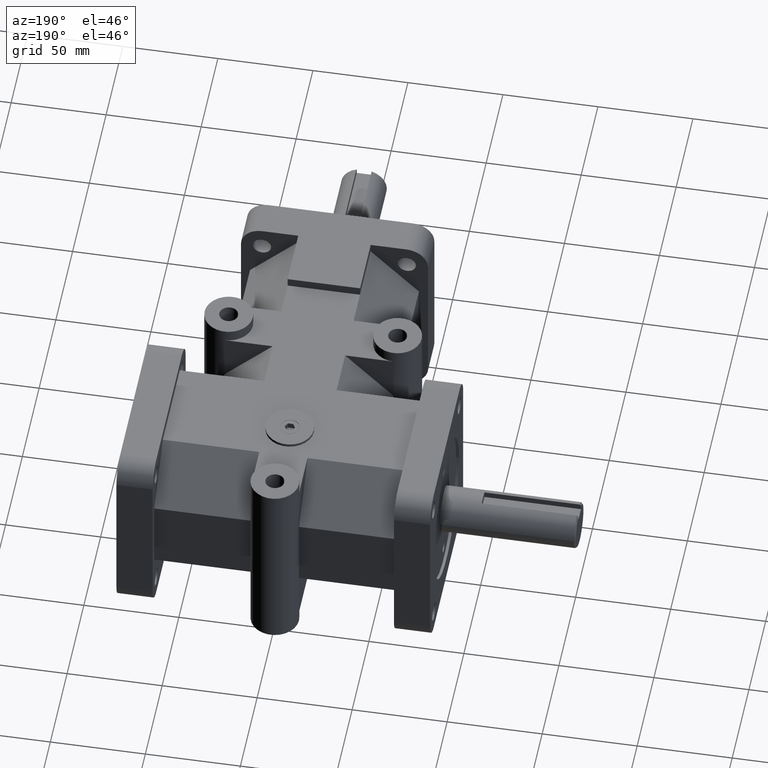
[diagram: clean part render]
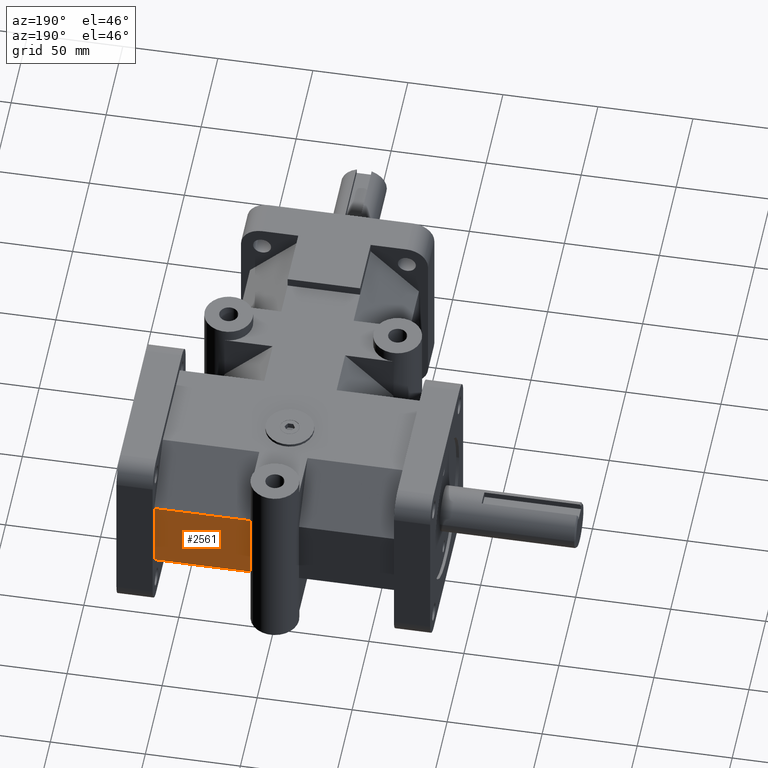
[diagram: same view with one face highlighted and labeled with its STEP entity id]
A machine part, auxiliary view. The second image highlights one B-rep face of the part: STEP entity #2561.
In plain terms, the highlighted planar face has unit normal (0, 1, 0).
Its self-contained STEP definition (entity closure, byte-faithful):
#331=FACE_OUTER_BOUND('',#509,.T.);
#509=EDGE_LOOP('',(#2200,#2201,#2202,#2203));
#649=LINE('',#3942,#899);
#750=LINE('',#4231,#1000);
#770=LINE('',#4264,#1020);
#777=LINE('',#4279,#1027);
#899=VECTOR('',#3167,1.);
#1000=VECTOR('',#3462,1.);
#1020=VECTOR('',#3500,1.);
#1027=VECTOR('',#3517,1.);
#1177=VERTEX_POINT('',#3939);
#1178=VERTEX_POINT('',#3941);
#1266=VERTEX_POINT('',#4215);
#1269=VERTEX_POINT('',#4230);
#1438=EDGE_CURVE('',#1177,#1178,#649,.T.);
#1584=EDGE_CURVE('',#1269,#1266,#750,.T.);
#1604=EDGE_CURVE('',#1269,#1177,#770,.T.);
#1611=EDGE_CURVE('',#1178,#1266,#777,.T.);
#2200=ORIENTED_EDGE('',*,*,#1584,.T.);
#2201=ORIENTED_EDGE('',*,*,#1611,.F.);
#2202=ORIENTED_EDGE('',*,*,#1438,.F.);
#2203=ORIENTED_EDGE('',*,*,#1604,.F.);
#2416=PLANE('',#2821);
#2561=ADVANCED_FACE('',(#331),#2416,.T.);
#2821=AXIS2_PLACEMENT_3D('',#4278,#3515,#3516);
#3167=DIRECTION('',(0.,0.,1.));
#3462=DIRECTION('',(0.,0.,1.));
#3500=DIRECTION('',(1.,0.,0.));
#3515=DIRECTION('center_axis',(0.,1.,0.));
#3516=DIRECTION('ref_axis',(0.,0.,-1.));
#3517=DIRECTION('',(-1.,0.,0.));
#3939=CARTESIAN_POINT('',(63.5,196.85,-19.05));
#3941=CARTESIAN_POINT('',(63.5,196.85,19.05));
#3942=CARTESIAN_POINT('',(63.5,196.85,0.));
#4215=CARTESIAN_POINT('',(12.7,196.85,19.05));
#4230=CARTESIAN_POINT('',(12.7,196.85,-19.05));
#4231=CARTESIAN_POINT('',(12.7,196.85,0.));
#4264=CARTESIAN_POINT('',(31.75,196.85,-19.05));
#4278=CARTESIAN_POINT('Origin',(63.5,196.85,0.));
#4279=CARTESIAN_POINT('',(31.75,196.85,19.05));